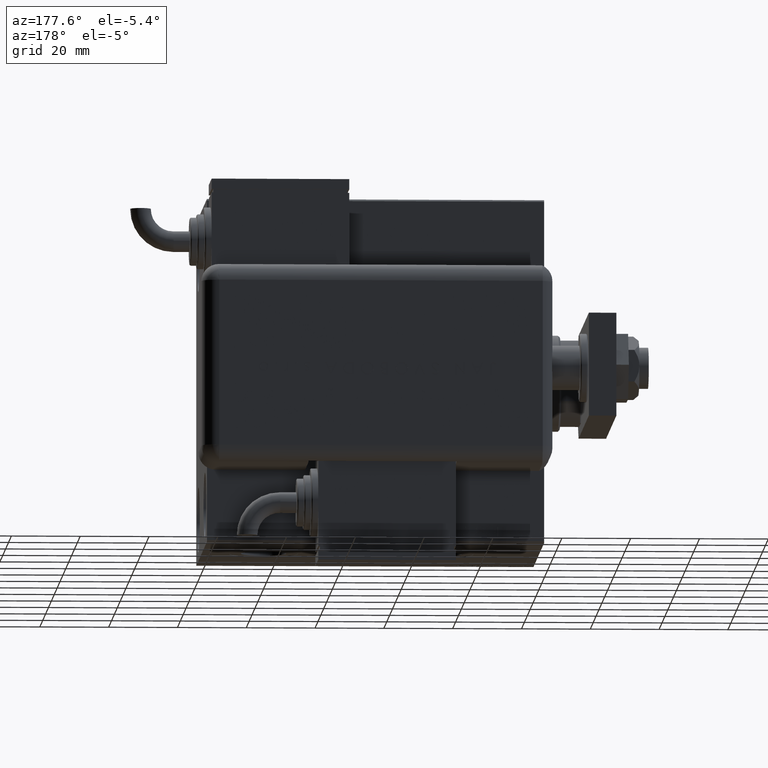
[diagram: clean part render]
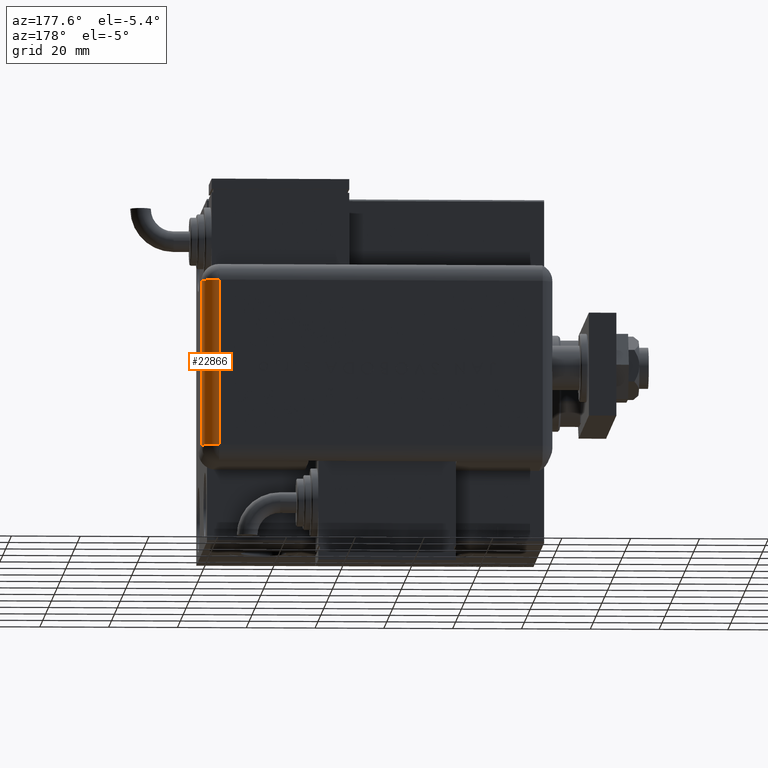
[diagram: same view with one face highlighted and labeled with its STEP entity id]
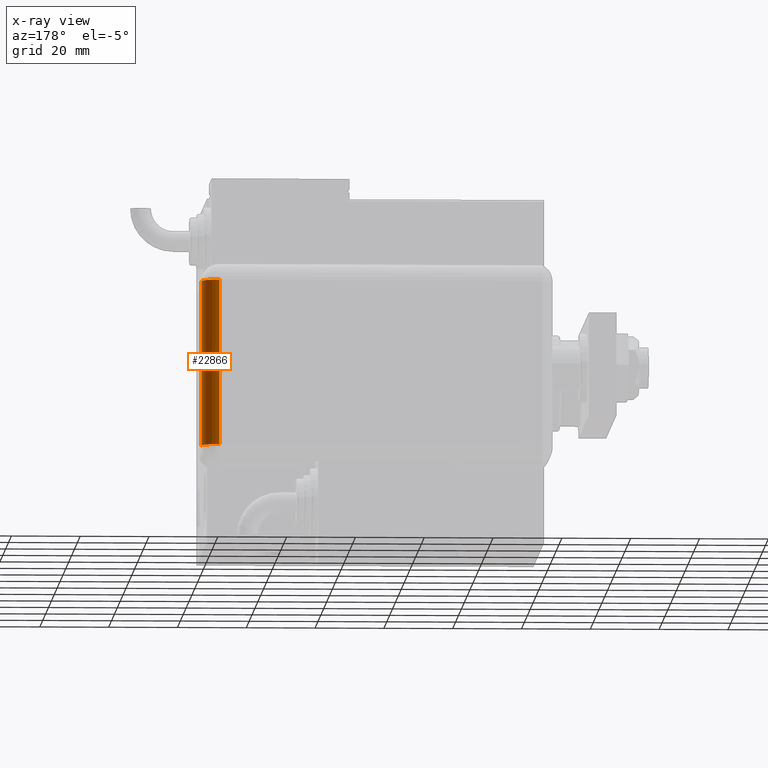
[diagram: x-ray of the same camera — body ghosted, the highlighted face saturated]
A machine part, auxiliary view. The second image highlights one B-rep face of the part: STEP entity #22866.
The next image is the same camera in x-ray: the body ghosted, the highlighted face saturated — about 0% of this face is hidden behind the body in this view.
In plain terms, the highlighted cylindrical surface (edge-blend (fillet) strip) has radius 5 mm, axis along (0, 0, 1).
Its self-contained STEP definition (entity closure, byte-faithful):
#933 = EDGE_CURVE ( 'NONE', #13263, #12541, #40742, .T. ) ;
#4763 = CARTESIAN_POINT ( 'NONE',  ( -23.99999999999999645, 20.79999999999998295, 5.000000000000002665 ) ) ;
#4970 = CYLINDRICAL_SURFACE ( 'NONE', #58739, 5.000000000000000000 ) ;
#6296 = ORIENTED_EDGE ( 'NONE', *, *, #59030, .F. ) ;
#7456 = LINE ( 'NONE', #53473, #13920 ) ;
#10360 = AXIS2_PLACEMENT_3D ( 'NONE', #4763, #50491, #36847 ) ;
#11704 = ORIENTED_EDGE ( 'NONE', *, *, #933, .F. ) ;
#12466 = EDGE_CURVE ( 'NONE', #22256, #53092, #43890, .T. ) ;
#12541 = VERTEX_POINT ( 'NONE', #22859 ) ;
#13204 = ORIENTED_EDGE ( 'NONE', *, *, #51097, .T. ) ;
#13263 = VERTEX_POINT ( 'NONE', #51080 ) ;
#13585 = CARTESIAN_POINT ( 'NONE',  ( 23.99999999999999289, 20.79999999999998295, 5.000000000000000000 ) ) ;
#13920 = VECTOR ( 'NONE', #34403, 1000.000000000000000 ) ;
#14424 = DIRECTION ( 'NONE',  ( 1.000000000000000000, -0.000000000000000000, -0.000000000000000000 ) ) ;
#22256 = VERTEX_POINT ( 'NONE', #23492 ) ;
#22634 = AXIS2_PLACEMENT_3D ( 'NONE', #52861, #29862, #57999 ) ;
#22859 = CARTESIAN_POINT ( 'NONE',  ( -23.99999999999999645, 25.79999999999998295, 5.000000000000004441 ) ) ;
#22866 = ADVANCED_FACE ( 'NONE', ( #59778 ), #4970, .T. ) ;
#22963 = DIRECTION ( 'NONE',  ( 0.000000000000000000, 0.000000000000000000, -1.000000000000000000 ) ) ;
#23489 = ORIENTED_EDGE ( 'NONE', *, *, #32424, .F. ) ;
#23492 = CARTESIAN_POINT ( 'NONE',  ( 23.00000000000000000, 21.00000000000000000, 0.004001601281286050471 ) ) ;
#26950 = AXIS2_PLACEMENT_3D ( 'NONE', #13585, #32038, #22963 ) ;
#29656 = VERTEX_POINT ( 'NONE', #36399 ) ;
#29862 = DIRECTION ( 'NONE',  ( -1.000000000000000000, -0.000000000000000000, 0.000000000000000000 ) ) ;
#31804 = CARTESIAN_POINT ( 'NONE',  ( 23.00000000000000000, 20.79999999999998295, 1.734723475976807094E-15 ) ) ;
#32038 = DIRECTION ( 'NONE',  ( 1.000000000000000000, -0.000000000000000000, 0.000000000000000000 ) ) ;
#32424 = EDGE_CURVE ( 'NONE', #49417, #53092, #55889, .T. ) ;
#33952 = VECTOR ( 'NONE', #14424, 1000.000000000000000 ) ;
#34403 = DIRECTION ( 'NONE',  ( 1.000000000000000000, 0.000000000000000000, 0.000000000000000000 ) ) ;
#36399 = CARTESIAN_POINT ( 'NONE',  ( 23.99999999999999289, 21.00000000000000000, 0.004001601281283882067 ) ) ;
#36455 = DIRECTION ( 'NONE',  ( 1.000000000000000000, 0.000000000000000000, 0.000000000000000000 ) ) ;
#36725 = CARTESIAN_POINT ( 'NONE',  ( -23.99999999999999645, 20.79999999999998295, 0.000000000000000000 ) ) ;
#36847 = DIRECTION ( 'NONE',  ( 0.000000000000000000, 0.000000000000000000, -1.000000000000000000 ) ) ;
#38516 = CIRCLE ( 'NONE', #26950, 5.000000000000000000 ) ;
#40693 = ORIENTED_EDGE ( 'NONE', *, *, #42529, .F. ) ;
#40742 = LINE ( 'NONE', #45296, #55156 ) ;
#42529 = EDGE_CURVE ( 'NONE', #22256, #29656, #7456, .T. ) ;
#43890 = CIRCLE ( 'NONE', #22634, 5.000000000000000000 ) ;
#44604 = ORIENTED_EDGE ( 'NONE', *, *, #12466, .T. ) ;
#45296 = CARTESIAN_POINT ( 'NONE',  ( -23.99999999999999645, 25.79999999999998295, 5.000000000000004441 ) ) ;
#49417 = VERTEX_POINT ( 'NONE', #36725 ) ;
#50461 = CARTESIAN_POINT ( 'NONE',  ( 23.99999999999999289, 20.79999999999998295, 0.000000000000000000 ) ) ;
#50491 = DIRECTION ( 'NONE',  ( 1.000000000000000000, -0.000000000000000000, 0.000000000000000000 ) ) ;
#50586 = EDGE_LOOP ( 'NONE', ( #40693, #44604, #23489, #13204, #11704, #6296 ) ) ;
#50989 = CARTESIAN_POINT ( 'NONE',  ( -28.99999999999999645, 20.79999999999998295, 5.000000000000004441 ) ) ;
#51080 = CARTESIAN_POINT ( 'NONE',  ( 23.99999999999999289, 25.79999999999998295, 5.000000000000004441 ) ) ;
#51097 = EDGE_CURVE ( 'NONE', #49417, #12541, #53825, .T. ) ;
#52861 = CARTESIAN_POINT ( 'NONE',  ( 23.00000000000000000, 20.79999999999998295, 5.000000000000004441 ) ) ;
#53092 = VERTEX_POINT ( 'NONE', #31804 ) ;
#53473 = CARTESIAN_POINT ( 'NONE',  ( -28.99999999999999645, 21.00000000000000000, 0.004001601281286050471 ) ) ;
#53825 = CIRCLE ( 'NONE', #10360, 5.000000000000000000 ) ;
#55156 = VECTOR ( 'NONE', #58320, 1000.000000000000000 ) ;
#55527 = DIRECTION ( 'NONE',  ( 0.000000000000000000, 0.000000000000000000, -1.000000000000000000 ) ) ;
#55889 = LINE ( 'NONE', #50461, #33952 ) ;
#57999 = DIRECTION ( 'NONE',  ( 0.000000000000000000, 1.526556658859590243E-14, -1.000000000000000000 ) ) ;
#58320 = DIRECTION ( 'NONE',  ( -1.000000000000000000, 0.000000000000000000, 0.000000000000000000 ) ) ;
#58739 = AXIS2_PLACEMENT_3D ( 'NONE', #50989, #36455, #55527 ) ;
#59030 = EDGE_CURVE ( 'NONE', #29656, #13263, #38516, .T. ) ;
#59778 = FACE_OUTER_BOUND ( 'NONE', #50586, .T. ) ;